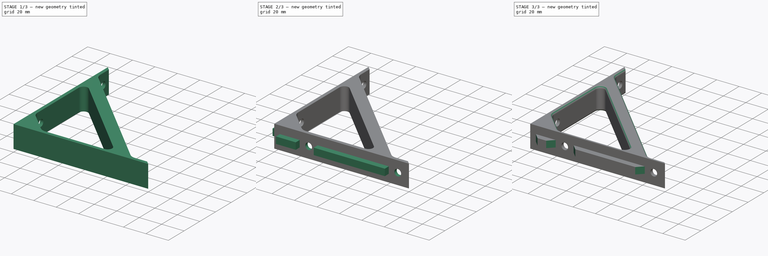
[diagram: build sequence overview — one tinted view per stage of 3, left to right]
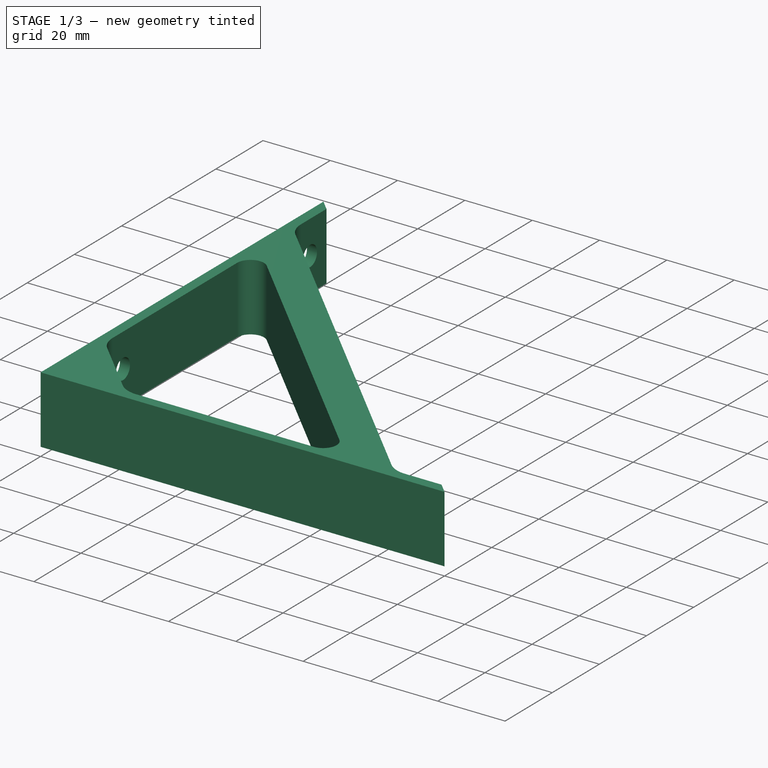
[diagram: stage 1 of 3 — iso view after this stage's code; geometry added in this stage tinted green]
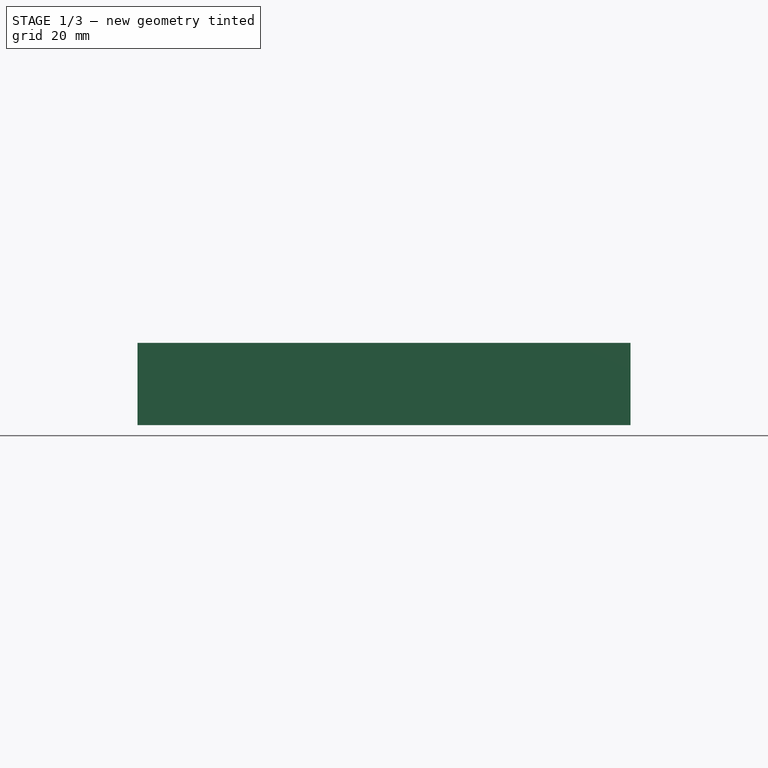
[diagram: stage 1 of 3 — front view after this stage's code; geometry added in this stage tinted green]
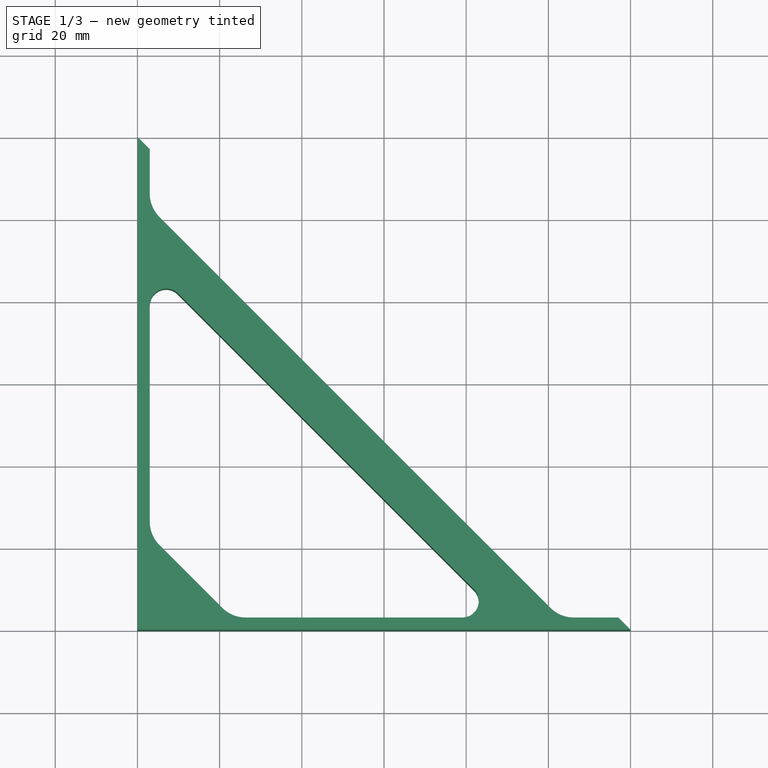
[diagram: stage 1 of 3 — top view after this stage's code; geometry added in this stage tinted green]
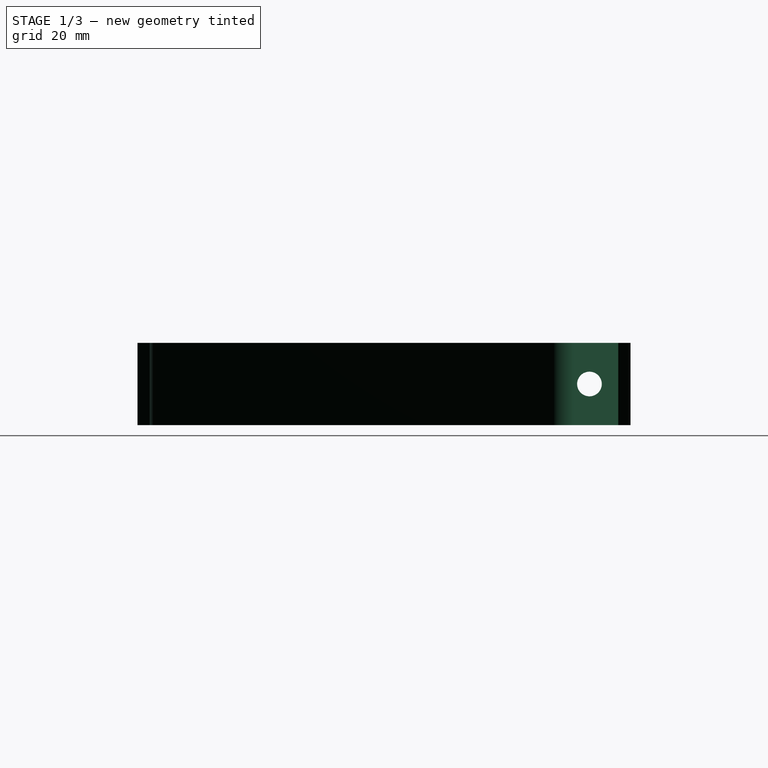
[diagram: stage 1 of 3 — right view after this stage's code; geometry added in this stage tinted green]
FCSTD DOCUMENT  (FreeCAD 1.0R39109 (Git))
Label: 90_bracket
License: All rights reserved
LicenseURL: https://en.wikipedia.org/wiki/All_rights_reserved
objects: Sketcher::SketchObject×4, PartDesign::Pad×2, PartDesign::Pocket×2, PartDesign::Plane×1, PartDesign::Mirrored×1, PartDesign::Fillet×1, PartDesign::Chamfer×1, PartDesign::Body×1
note: 30 computed .brp shape members not serialized (recipe doc carries the construction recipe); baked Part::Feature solids carry a one-line shape summary decoded from their .brp

FEATURE [Sketcher::SketchObject] Sketch
  ArcFitTolerance = 1e-06
  AttachmentSupport = -> [XY_Plane]
  FullyConstrained = true
  MakeInternals = false
  MapMode = 5
  sketch-geometry (32):
    g0: LineSegment [constr] StartX=-60 StartY=-60 StartZ=0 EndX=60 EndY=-60 EndZ=0
    g1: LineSegment [constr] StartX=60 StartY=-60 StartZ=0 EndX=60 EndY=60 EndZ=0
    g2: LineSegment [constr] StartX=60 StartY=60 StartZ=0 EndX=-60 EndY=60 EndZ=0
    g3: LineSegment [constr] StartX=-60 StartY=60 StartZ=0 EndX=-60 EndY=-60 EndZ=0
    g4: GeomPoint [constr] X=0 Y=0 Z=0
    g5: LineSegment StartX=-60 StartY=60 StartZ=0 EndX=-60 EndY=-60 EndZ=0
    g6: LineSegment StartX=-60 StartY=-60 StartZ=0 EndX=60 EndY=-60 EndZ=0
    g7: LineSegment [constr] StartX=60 StartY=-60 StartZ=0 EndX=-60 EndY=60 EndZ=0
    g8: LineSegment [constr] StartX=-57 StartY=42.8579 StartZ=0 EndX=-57 EndY=-57 EndZ=0
    g9: LineSegment [constr] StartX=-57 StartY=-57 StartZ=0 EndX=42.8579 EndY=-57 EndZ=0
    g10: LineSegment StartX=40.5147 StartY=-54.6569 StartZ=0 EndX=-54.6569 EndY=40.5147 EndZ=0
    g11: LineSegment [constr] StartX=-57 StartY=-57 StartZ=0 EndX=-7.07107 EndY=-7.07107 EndZ=0
    g12: LineSegment StartX=-54.6569 StartY=-39.3431 StartZ=0 EndX=-39.3431 EndY=-54.6569 EndZ=0
    g13: LineSegment StartX=-50.1716 StartY=21.8873 StartZ=0 EndX=21.8873 EndY=-50.1716 EndZ=0
    g14: LineSegment StartX=-33.6863 StartY=-57 StartZ=0 EndX=19.0589 EndY=-57 EndZ=0
    g15: LineSegment StartX=-57 StartY=-33.6863 StartZ=0 EndX=-57 EndY=19.0589 EndZ=0
    g16: LineSegment StartX=-57 StartY=46.1716 StartZ=0 EndX=-57 EndY=57 EndZ=0
    g17: LineSegment StartX=46.1716 StartY=-57 StartZ=0 EndX=57 EndY=-57 EndZ=0
    g18: LineSegment StartX=-57 StartY=57 StartZ=0 EndX=-60 EndY=60 EndZ=0
    g19: LineSegment StartX=57 StartY=-57 StartZ=0 EndX=60 EndY=-60 EndZ=0
    g20: ArcOfCircle CenterX=-53 CenterY=19.0589 CenterZ=0 NormalX=0 NormalY=0 NormalZ=1 AngleXU=0 Radius=4 StartAngle=0.785398 EndAngle=3.14159
    g21: GeomPoint [constr] X=-57 Y=28.7157 Z=0
    g22: ArcOfCircle CenterX=19.0589 CenterY=-53 CenterZ=0 NormalX=0 NormalY=0 NormalZ=1 AngleXU=0 Radius=4 StartAngle=4.71239 EndAngle=7.06858
    g23: GeomPoint [constr] X=28.7157 Y=-57 Z=0
    g24: ArcOfCircle CenterX=-49 CenterY=-33.6863 CenterZ=0 NormalX=0 NormalY=0 NormalZ=1 AngleXU=0 Radius=8 StartAngle=3.14159 EndAngle=3.92699
    g25: GeomPoint [constr] X=-57 Y=-37 Z=0
    g26: ArcOfCircle CenterX=-33.6863 CenterY=-49 CenterZ=0 NormalX=0 NormalY=0 NormalZ=1 AngleXU=0 Radius=8 StartAngle=3.92699 EndAngle=4.71239
    g27: GeomPoint [constr] X=-37 Y=-57 Z=0
    g28: ArcOfCircle CenterX=-49 CenterY=46.1716 CenterZ=0 NormalX=0 NormalY=0 NormalZ=1 AngleXU=0 Radius=8 StartAngle=3.14159 EndAngle=3.92699
    g29: GeomPoint [constr] X=-57 Y=42.8579 Z=0
    g30: ArcOfCircle CenterX=46.1716 CenterY=-49 CenterZ=0 NormalX=0 NormalY=0 NormalZ=1 AngleXU=0 Radius=8 StartAngle=3.92699 EndAngle=4.71239
    g31: GeomPoint [constr] X=42.8579 Y=-57 Z=0
  constraints (75):
    c: Coincident(g0,g1)
    c: Coincident(g1,g2)
    c: Coincident(g2,g3)
    c: Coincident(g3,g0)
    c: Horizontal(g0)
    c: Horizontal(g2)
    c: Vertical(g1)
    c: Vertical(g3)
    c: Symmetric(g2,g0,g4)
    c: Distance(g1,g3) = 120
    c: Distance(g0,g2) = 120
    c: Coincident(g4,g-1)
    c: Coincident(g5,g2)
    c: Coincident(g5,g0)
    c: Coincident(g0,g6)
    c: Coincident(g6,g0)
    c: Coincident(g6,g7)
    c: Coincident(g7,g2)
    c: Vertical(g8)
    c: Coincident(g8,g9)
    c: Horizontal(g9)
    c: Coincident(g9,g31)
    c: Coincident(g29,g8)
    c: Distance(g5,g8) = 3
    c: Distance(g6,g9) = 3
    c: Parallel(g10,g7)
    c: Distance(g7,g10) = 10
    c: Coincident(g11,g8)
    c: Symmetric(g31,g29,g11)
    c: PointOnObject(g25,g8)
    c: PointOnObject(g27,g9)
    c: Parallel(g12,g10)
    c: DistanceY(g8,g25) = 20
    c: PointOnObject(g21,g8)
    c: PointOnObject(g23,g9)
    c: Parallel(g13,g10)
    c: Distance(g31,g13) = 10
    c: PointOnObject(g16,g7)
    c: Vertical(g16)
    c: PointOnObject(g17,g7)
    c: Horizontal(g17)
    c: Coincident(g16,g18)
    c: Coincident(g18,g2)
    c: Coincident(g19,g17)
    c: Coincident(g19,g0)
    c: PointOnObject(g21,g13)
    c: PointOnObject(g21,g15)
    c: Tangent(g13,g20) = 1.5708
    c: Tangent(g15,g20) = 1.5708
    c: PointOnObject(g23,g14)
    c: PointOnObject(g23,g13)
    c: Tangent(g14,g22) = -1.5708
    c: Tangent(g13,g22) = 1.5708
    c: PointOnObject(g25,g12)
    c: PointOnObject(g25,g15)
    c: Tangent(g12,g24) = -1.5708
    c: Tangent(g15,g24) = 1.5708
    c: PointOnObject(g27,g14)
    c: PointOnObject(g27,g12)
    c: Tangent(g14,g26) = -1.5708
    c: Tangent(g12,g26) = -1.5708
    c: Radius(g20) = 4
    c: Radius(g22) = 4
    c: Radius(g24) = 8
    c: Radius(g26) = 8
    c: PointOnObject(g29,g10)
    c: PointOnObject(g29,g16)
    c: Tangent(g10,g28) = 1.5708
    c: Tangent(g16,g28) = 1.5708
    c: PointOnObject(g31,g17)
    c: PointOnObject(g31,g10)
    c: Tangent(g17,g30) = -1.5708
    c: Tangent(g10,g30) = 1.5708
    c: Radius(g28) = 8
    c: Radius(g30) = 8
FEATURE [PartDesign::Pad] Pad
  Direction = (0,0,1)
  Length = 20
  Length2 = 10
  Profile = -> Sketch
  ReferenceAxis = -> Sketch [N_Axis]
  Refine = true
  Suppressed = false
  Type = 0
FEATURE [Sketcher::SketchObject] Sketch001
  ArcFitTolerance = 1e-06
  AttachmentSupport = -> [Pad]
  ExternalGeometry = -> [Pad]
  FullyConstrained = true
  MakeInternals = false
  MapMode = 5
  Placement = pos=(-57,0,0) rot=(0.57735,0.57735,0.57735;2.0944rad)
  sketch-geometry (3):
    g0: LineSegment [constr] StartX=-39.3431 StartY=10 StartZ=0 EndX=57 EndY=10 EndZ=0
    g1: Circle CenterX=50 CenterY=10 CenterZ=0 NormalX=0 NormalY=0 NormalZ=1 AngleXU=0 Radius=3
    g2: Circle CenterX=-29.3431 CenterY=10 CenterZ=0 NormalX=0 NormalY=0 NormalZ=1 AngleXU=0 Radius=3
  constraints (8):
    c: Symmetric(g-7,g-7,g0)
    c: Symmetric(g-8,g-8,g0)
    c: PointOnObject(g1,g0)
    c: PointOnObject(g2,g0)
    c: Diameter(g2) = 6
    c: Diameter(g1) = 6
    c: Distance(g2,g-7) = 10
    c: Distance(g1,g-8) = 7
FEATURE [Sketcher::SketchObject] Sketch002
  ArcFitTolerance = 1e-06
  AttachmentSupport = -> [Pad]
  ExternalGeometry = -> [Pad]
  FullyConstrained = true
  MakeInternals = false
  MapMode = 5
  Placement = pos=(0,-57,0) rot=(0,0.707107,0.707107;3.14159rad)
  sketch-geometry (3):
    g0: LineSegment [constr] StartX=-57 StartY=10 StartZ=0 EndX=39.3431 EndY=10 EndZ=0
    g1: Circle CenterX=-50 CenterY=10 CenterZ=0 NormalX=0 NormalY=0 NormalZ=1 AngleXU=0 Radius=3
    g2: Circle CenterX=29.3431 CenterY=10 CenterZ=0 NormalX=0 NormalY=0 NormalZ=1 AngleXU=0 Radius=3
  constraints (8):
    c: Symmetric(g-3,g-3,g0)
    c: Symmetric(g-4,g-4,g0)
    c: PointOnObject(g1,g0)
    c: PointOnObject(g2,g0)
    c: Diameter(g1) = 6
    c: Diameter(g2) = 6
    c: Distance(g1,g-3) = 7
    c: Distance(g2,g-4) = 10
FEATURE [PartDesign::Pocket] Pocket
  BaseFeature = -> Pad
  Direction = (-1,0,0)
  Length = 5
  Length2 = 5
  Profile = -> Sketch001
  ReferenceAxis = -> Sketch001 [N_Axis]
  Refine = true
  Suppressed = false
  Type = 0
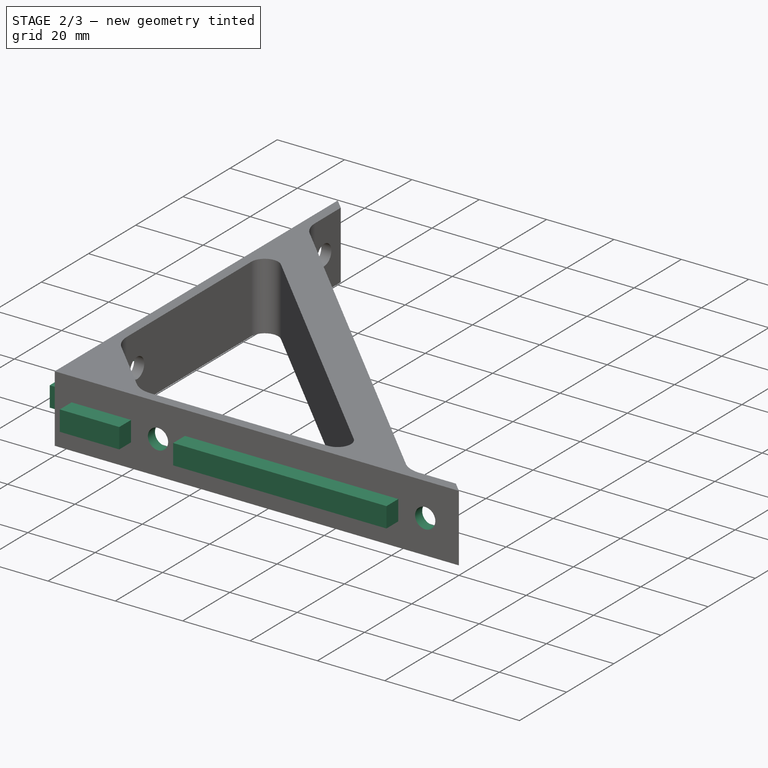
[diagram: stage 2 of 3 — iso view after this stage's code; geometry added in this stage tinted green]
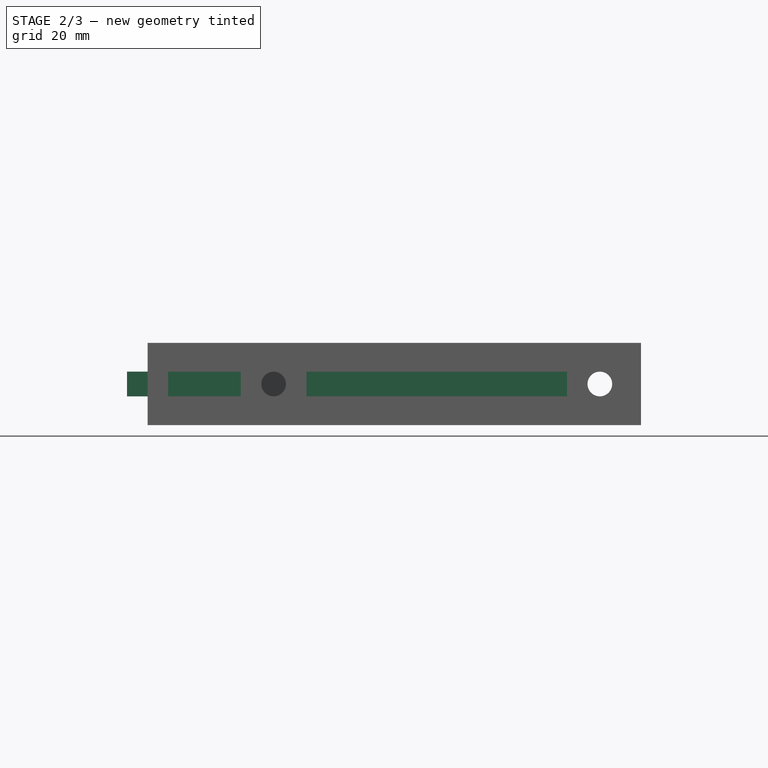
[diagram: stage 2 of 3 — front view after this stage's code; geometry added in this stage tinted green]
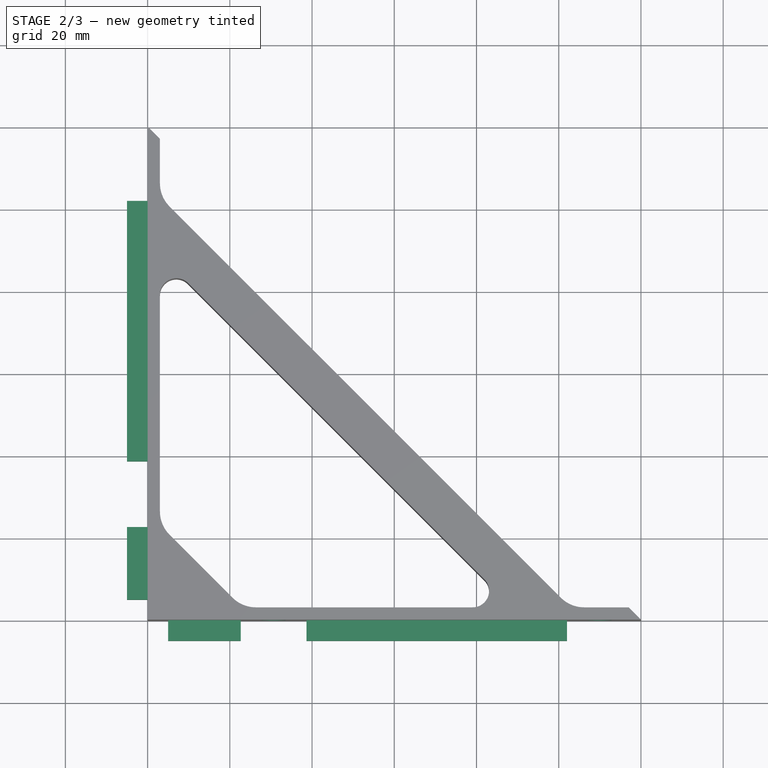
[diagram: stage 2 of 3 — top view after this stage's code; geometry added in this stage tinted green]
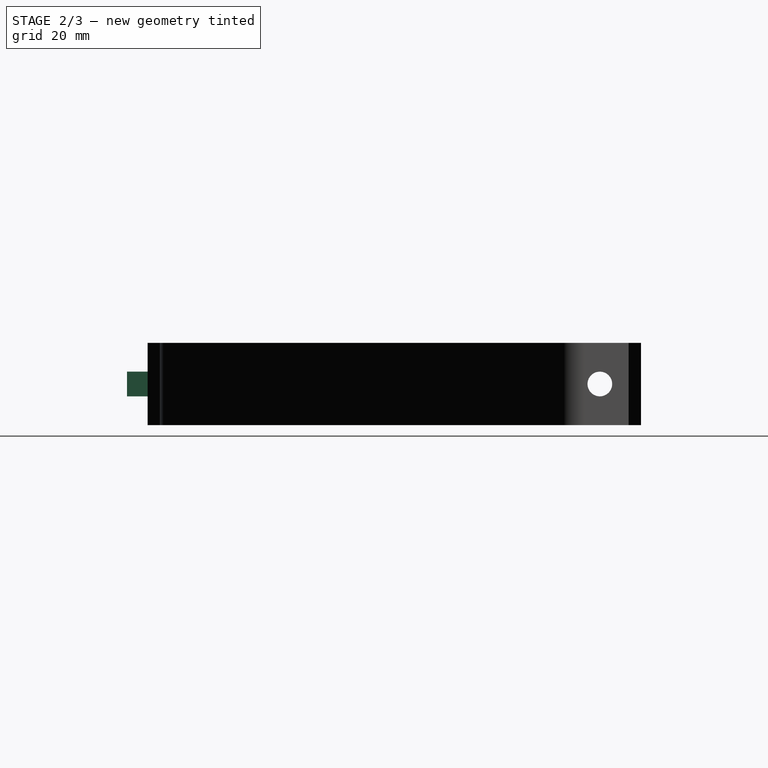
[diagram: stage 2 of 3 — right view after this stage's code; geometry added in this stage tinted green]
FEATURE [PartDesign::Pocket] Pocket001
  BaseFeature = -> Pocket
  Direction = (0,-1,2e-16)
  Length = 5
  Length2 = 5
  Profile = -> Sketch002
  ReferenceAxis = -> Sketch002 [N_Axis]
  Refine = true
  Suppressed = false
  Type = 0
FEATURE [Sketcher::SketchObject] Sketch003
  ArcFitTolerance = 1e-06
  AttachmentSupport = -> [Pocket001]
  ExternalGeometry = -> [Pocket001]
  FullyConstrained = true
  MakeInternals = false
  MapMode = 5
  Placement = pos=(-60,0,0) rot=(0.57735,-0.57735,-0.57735;2.0944rad)
  sketch-geometry (11):
    g0: LineSegment [constr] StartX=-60 StartY=10 StartZ=0 EndX=60 EndY=10 EndZ=0
    g1: LineSegment StartX=-42 StartY=13 StartZ=0 EndX=-42 EndY=7 EndZ=0
    g2: LineSegment StartX=-42 StartY=7 StartZ=0 EndX=21.3431 EndY=7 EndZ=0
    g3: LineSegment StartX=21.3431 StartY=7 StartZ=0 EndX=21.3431 EndY=13 EndZ=0
    g4: LineSegment StartX=21.3431 StartY=13 StartZ=0 EndX=-42 EndY=13 EndZ=0
    g5: GeomPoint [constr] X=-10.3284 Y=10 Z=0
    g6: LineSegment StartX=37.3431 StartY=13 StartZ=0 EndX=37.3431 EndY=7 EndZ=0
    g7: LineSegment StartX=37.3431 StartY=7 StartZ=0 EndX=55 EndY=7 EndZ=0
    g8: LineSegment StartX=55 StartY=7 StartZ=0 EndX=55 EndY=13 EndZ=0
    g9: LineSegment StartX=55 StartY=13 StartZ=0 EndX=37.3431 EndY=13 EndZ=0
    g10: GeomPoint [constr] X=46.1716 Y=10 Z=0
  constraints (28):
    c: Symmetric(g-3,g-3,g0)
    c: Symmetric(g-4,g-4,g0)
    c: Coincident(g1,g2)
    c: Coincident(g2,g3)
    c: Coincident(g3,g4)
    c: Coincident(g4,g1)
    c: Vertical(g1)
    c: Vertical(g3)
    c: Horizontal(g2)
    c: Horizontal(g4)
    c: Symmetric(g3,g1,g5)
    c: PointOnObject(g5,g0)
    c: Coincident(g6,g7)
    c: Coincident(g7,g8)
    c: Coincident(g8,g9)
    c: Coincident(g9,g6)
    c: Vertical(g6)
    c: Vertical(g8)
    c: Horizontal(g7)
    c: Horizontal(g9)
    c: Symmetric(g8,g6,g10)
    c: PointOnObject(g10,g0)
    c: DistanceY(g8,g8) = 6
    c: Equal(g8,g3)
    c: Distance(g-6,g1) = 5
    c: Distance(g-5,g3) = 5
    c: Distance(g-5,g6) = 5
    c: Distance(g-4,g8) = 5
FEATURE [PartDesign::Pad] Pad001
  BaseFeature = -> Pocket001
  Direction = (-1,0,0)
  Length = 5
  Length2 = 10
  Profile = -> Sketch003
  ReferenceAxis = -> Sketch003 [N_Axis]
  Refine = true
  Suppressed = false
  Type = 0
FEATURE [PartDesign::Plane] DatumPlane
  AttachmentOffset = pos=(0,0,0) rot=(0,1,0;1.5708rad)
  AttachmentSupport = -> [Pad001]
  Length = 195.58
  MapMode = 5
  Placement = pos=(-14.1421,-14.1421,0) rot=(0.862856,0.357407,0.357407;1.71777rad)
  ResizeMode = 0
  Width = 68.803
FEATURE [PartDesign::Mirrored] Mirrored
  BaseFeature = -> Pad001
  MirrorPlane = -> DatumPlane
  Originals = -> [Pad001]
  Refine = true
  Suppressed = false
  TransformMode = 0
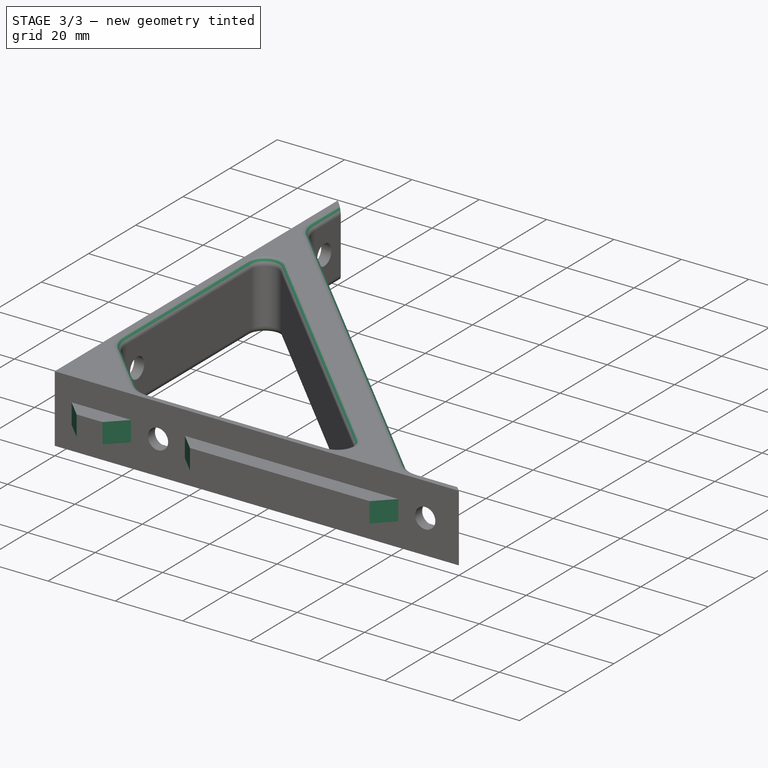
[diagram: stage 3 of 3 — iso view after this stage's code; geometry added in this stage tinted green]
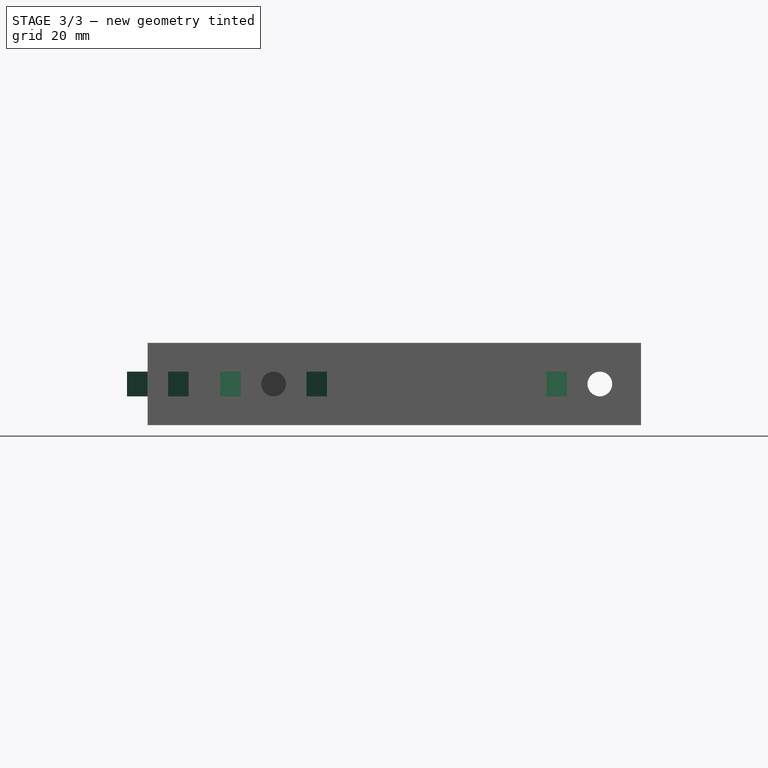
[diagram: stage 3 of 3 — front view after this stage's code; geometry added in this stage tinted green]
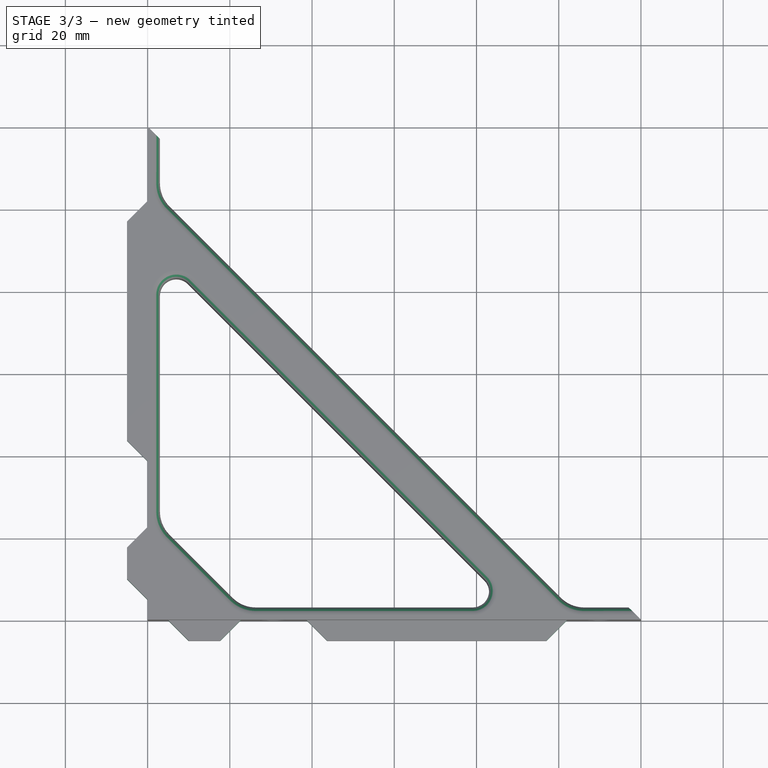
[diagram: stage 3 of 3 — top view after this stage's code; geometry added in this stage tinted green]
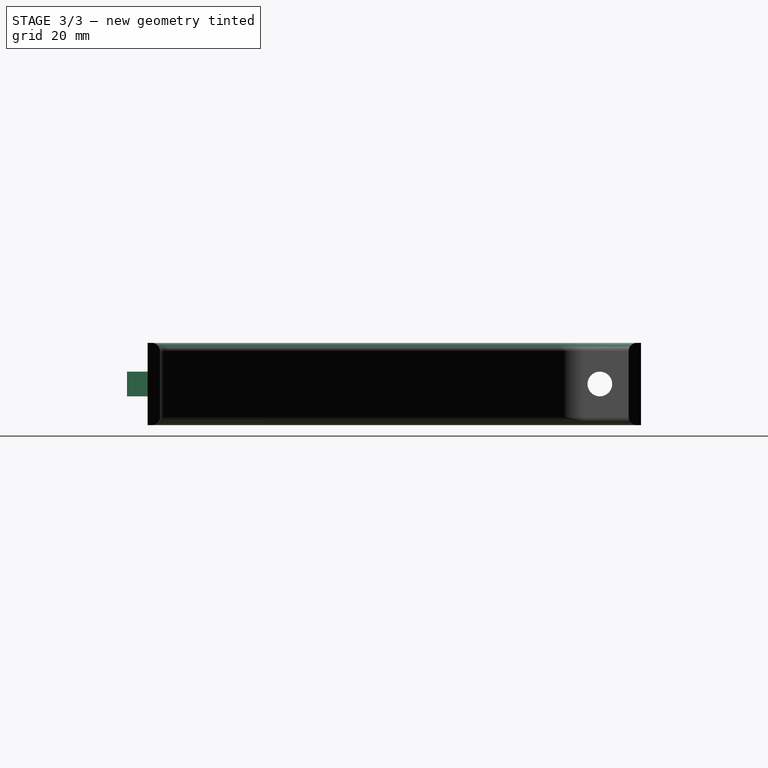
[diagram: stage 3 of 3 — right view after this stage's code; geometry added in this stage tinted green]
FEATURE [PartDesign::Fillet] Fillet
  Base = -> Mirrored [Face14,Face7]
  BaseFeature = -> Mirrored
  Radius = 2
  Refine = true
  SupportTransform = false
  Suppressed = false
  UseAllEdges = false
FEATURE [PartDesign::Chamfer] Chamfer
  Angle = 45
  Base = -> Fillet [Edge124,Edge127,Edge137,Edge134,Edge145,Edge141,Edge156,Edge152]
  BaseFeature = -> Fillet
  ChamferType = 0
  FlipDirection = false
  Refine = true
  Size = 4.99
  Size2 = 1
  SupportTransform = false
  Suppressed = false
  UseAllEdges = false
FEATURE [PartDesign::Body] Body
  AllowCompound = false
  Group = -> [Sketch,Pad,Sketch001,Sketch002,Pocket,Pocket001,Sketch003,Pad001,DatumPlane,Mirrored,Fillet,Chamfer]
  Origin = -> Origin
  Tip = -> Chamfer
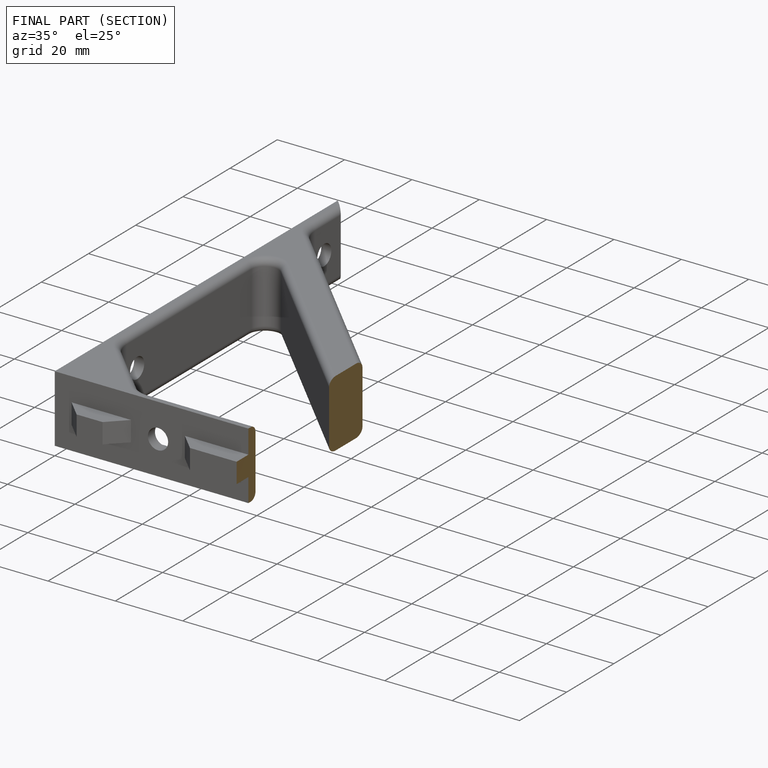
[diagram: finished part — half-section view (interior)]
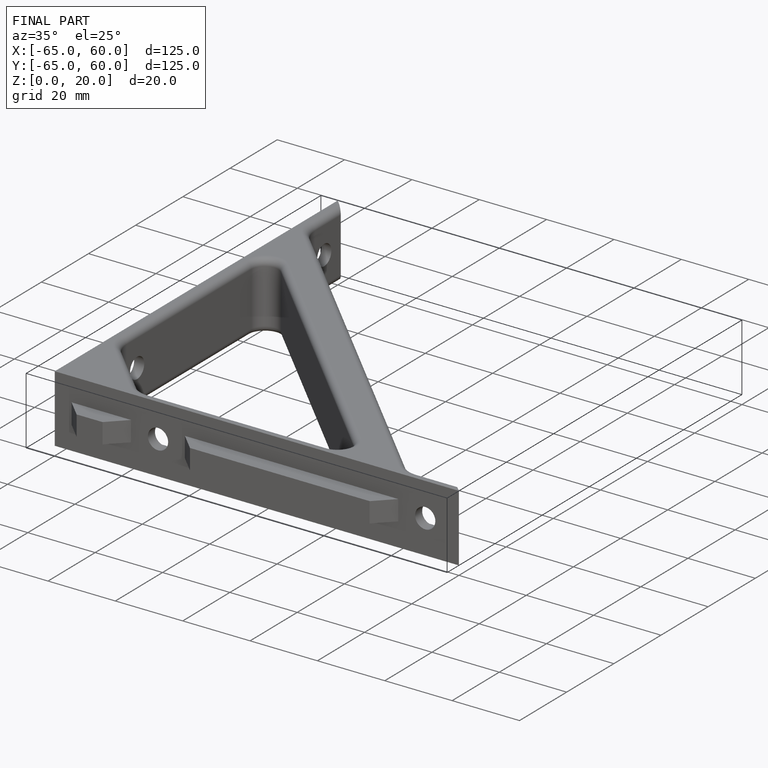
[diagram: finished part — iso view with bounding-box wireframe]
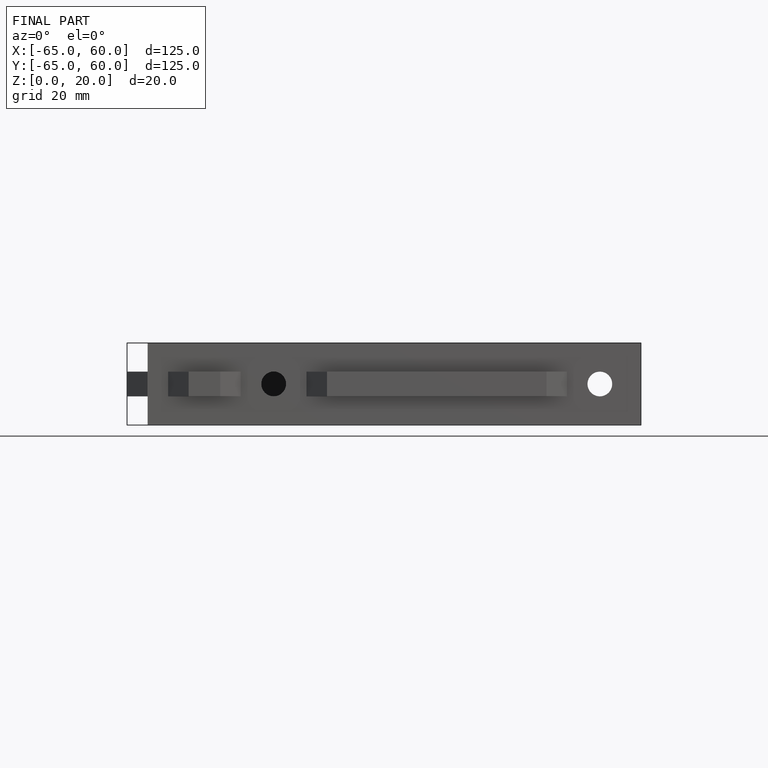
[diagram: finished part — front view with bounding-box wireframe]
